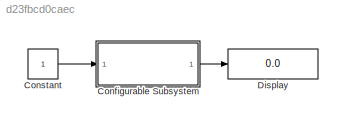
MODEL slx_d23fbcd0caec
KIND model
CONFIG AbsTol = auto
CONFIG FixedStep = auto
CONFIG MaxStep = auto
CONFIG MinStep = auto
CONFIG RelTol = 1e-3
CONFIG SampleTimeConstraint = Unconstrained
CONFIG Solver = VariableStepAuto
CONFIG SolverMode = Auto
CONFIG SolverName = VariableStepAuto
CONFIG StartTime = 0.0
CONFIG StopTime = 10.0
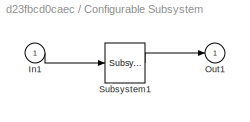
BLOCK [SubSystem] Configurable Subsystem
  AttributesFormatString = %<BlockChoice>
  BlockChoice = Subsystem1
  MemberBlocks = Subsystem,Subsystem1,Subsystem2
  Ports = [1, 1]
  RequestExecContextInheritance = off
  TemplateBlock = LibConfigurableSubsystem/Configurable\nSubsystem
  Variant = off
BLOCK [Inport] Configurable Subsystem/In1
  IconDisplay = Port number
BLOCK [Outport] Configurable Subsystem/Out1
  IconDisplay = Port number
BLOCK [Reference] Configurable Subsystem/Subsystem1  REF=LibConfigurableSubsystem/Subsystem1
  Ports = [1, 1]
  SourceBlock = LibConfigurableSubsystem/Subsystem1
  SourceType = SubSystem
BLOCK [Constant] Constant
BLOCK [Display] Display
  Decimation = 1
  Ports = [1]
LINE Configurable Subsystem:1 -> Display:1
LINE Constant:1 -> Configurable Subsystem:1
